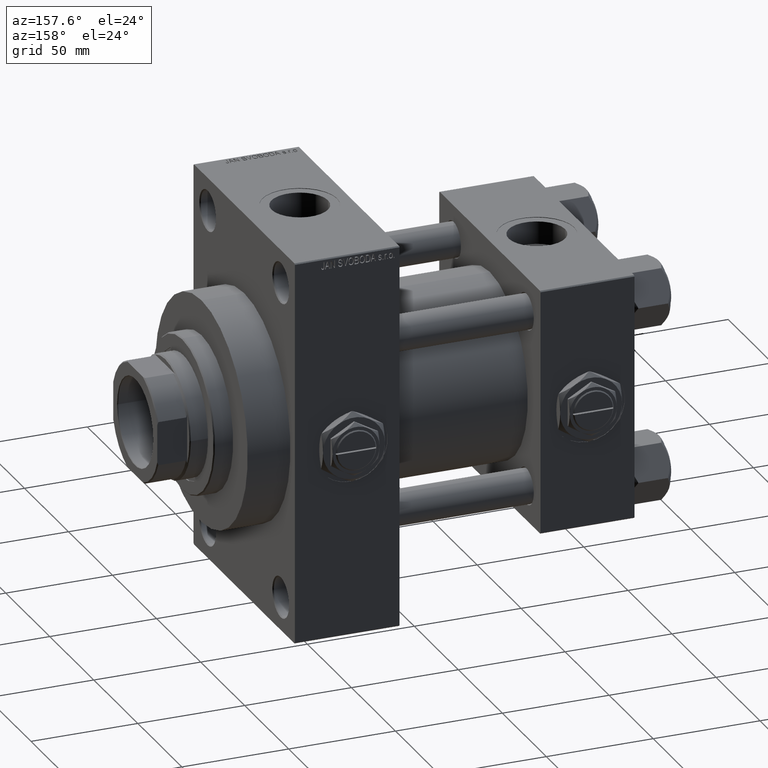
[diagram: clean part render]
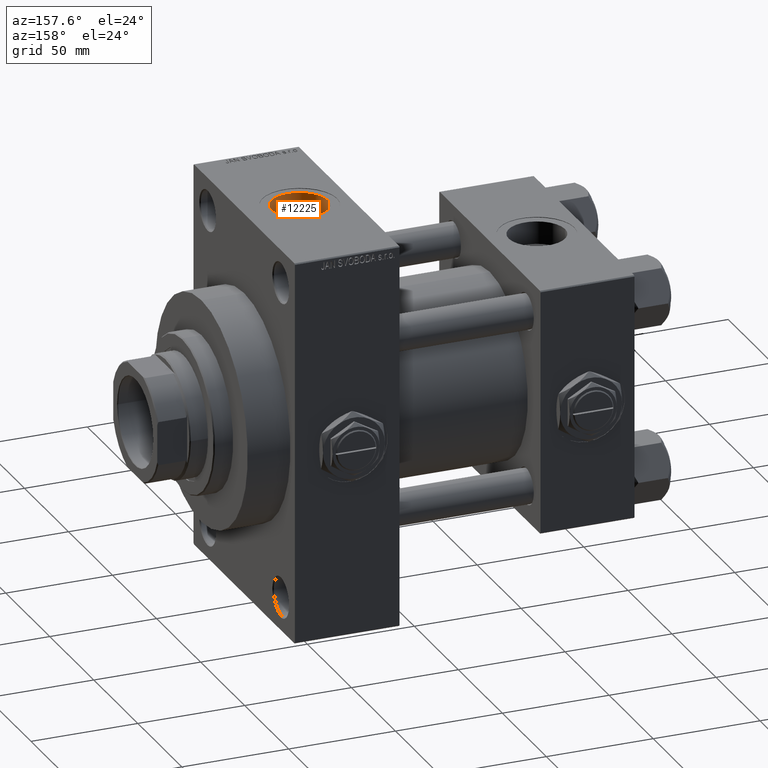
[diagram: same view with one face highlighted and labeled with its STEP entity id]
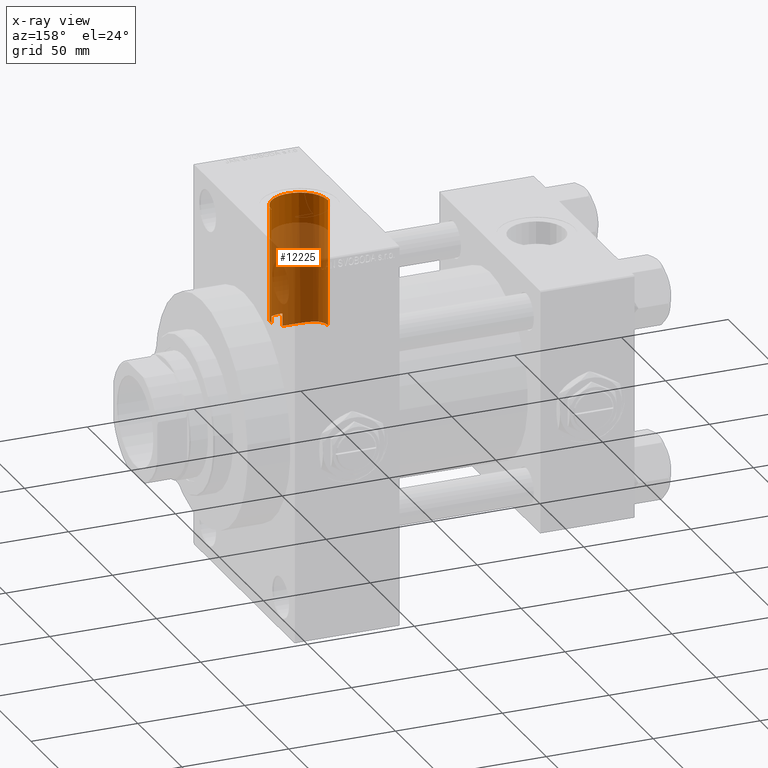
[diagram: x-ray of the same camera — body ghosted, the highlighted face saturated]
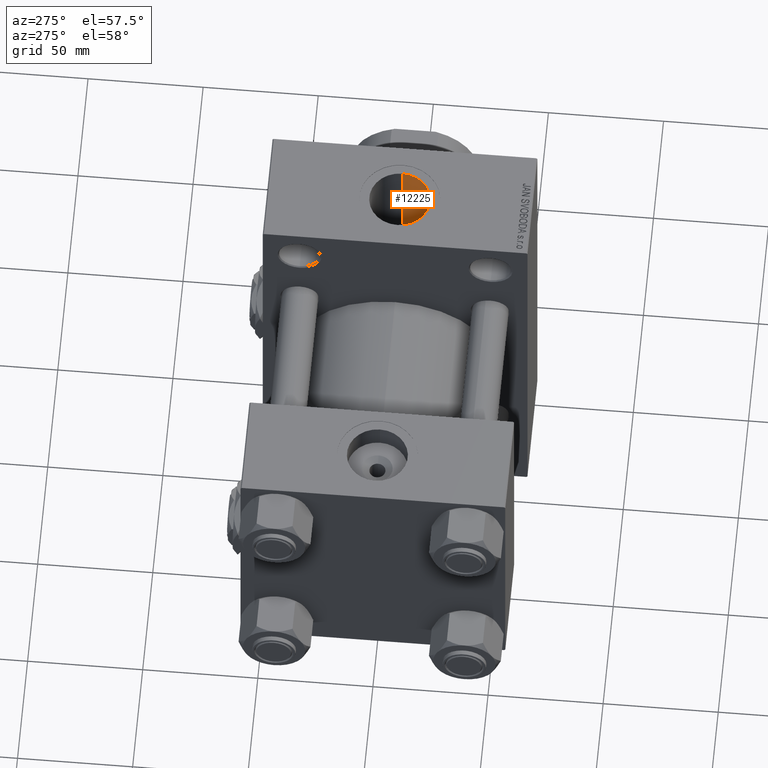
[diagram: same view with one face highlighted and labeled with its STEP entity id]
A machine part, auxiliary view. The second image highlights one B-rep face of the part: STEP entity #12225.
The next image is the same camera in x-ray: the body ghosted, the highlighted face saturated — about 76% of this face is hidden behind the body in this view.
A second angle (auxiliary view) of the same face is appended — the face is thin or edge-on in the first view.
In plain terms, the highlighted cylindrical surface (edge-blend (fillet) strip) has radius 13.22 mm, axis along (0, 0, -1).
Its self-contained STEP definition (entity closure, byte-faithful):
#245 = EDGE_CURVE ( 'NONE', #15597, #9908, #36972, .T. ) ;
#816 = EDGE_CURVE ( 'NONE', #9908, #44210, #6423, .T. ) ;
#1517 = VECTOR ( 'NONE', #10069, 1000.000000000000000 ) ;
#1561 = CARTESIAN_POINT ( 'NONE',  ( 133.0000000000000000, -1.086087741481131350E-14, 112.7999999999999829 ) ) ;
#2266 = EDGE_CURVE ( 'NONE', #15597, #48981, #13333, .T. ) ;
#2610 = CARTESIAN_POINT ( 'NONE',  ( 131.8037034507516125, -13.17510903343229600, 27.50766127672410022 ) ) ;
#2833 = CARTESIAN_POINT ( 'NONE',  ( 137.2076088460675294, -12.53825874082049552, 33.74619856893892234 ) ) ;
#3078 = CARTESIAN_POINT ( 'NONE',  ( 146.2200000000000273, -0.7632647160769636674, 36.00000000000000000 ) ) ;
#3332 = CARTESIAN_POINT ( 'NONE',  ( 130.8194127222318741, -13.04835861710616030, 27.56801161413727641 ) ) ;
#3837 = CARTESIAN_POINT ( 'NONE',  ( 126.2234386244904272, -11.39284893347530669, 28.29622104590160347 ) ) ;
#4328 = CARTESIAN_POINT ( 'NONE',  ( 127.9856869291995451, -12.24205054737453580, 27.93593895886880318 ) ) ;
#5155 = CARTESIAN_POINT ( 'NONE',  ( 119.7800000000000011, -1.086087741481131350E-14, 89.79999999999998295 ) ) ;
#6384 = CARTESIAN_POINT ( 'NONE',  ( 135.7400000000000091, -12.93293470176048920, 27.62225914004861949 ) ) ;
#6423 = B_SPLINE_CURVE_WITH_KNOTS ( 'NONE', 3,
 ( #30024, #3078, #49657, #14189, #48670, #7100, #37835, #38076, #18707, #15175, #45146, #21985, #45634, #22723, #14674, #49404, #11389, #37586, #26508, #29547, #22475, #10631, #2833, #7599, #41865, #26011 ),
 .UNSPECIFIED., .F., .F.,
 ( 4, 2, 2, 2, 2, 2, 2, 2, 2, 2, 2, 2, 4 ),
 ( 0.01810032772820883984, 0.02036086973656282134, 0.02149114074073981903, 0.02262141174491681672, 0.02488195375327078782, 0.02601222475744779244, 0.02714249576162479360, 0.02940303776997874735, 0.03053330877415569300, 0.03166357977833263865, 0.03392412178668652301, 0.03505439279086347559, 0.03618466379504041430 ),
 .UNSPECIFIED. ) ;
#6843 = DIRECTION ( 'NONE',  ( -0.000000000000000000, -0.000000000000000000, -1.000000000000000000 ) ) ;
#7100 = CARTESIAN_POINT ( 'NONE',  ( 145.6891278366016707, -3.727918262643101333, 35.80834393886974709 ) ) ;
#7365 = CARTESIAN_POINT ( 'NONE',  ( 120.6573864625835313, -4.834977203227584397, 30.12760479331261720 ) ) ;
#7447 = DIRECTION ( 'NONE',  ( 0.000000000000000000, 0.000000000000000000, -1.000000000000000000 ) ) ;
#7599 = CARTESIAN_POINT ( 'NONE',  ( 136.4827252521805008, -12.75862568112616025, 33.66350131574142068 ) ) ;
#7610 = CARTESIAN_POINT ( 'NONE',  ( 125.4103075940778353, -10.86814745508434044, 28.50545567885846410 ) ) ;
#8112 = CARTESIAN_POINT ( 'NONE',  ( 119.7800000000000153, -0.4934884814115302332, 30.50000000000000355 ) ) ;
#8426 = CARTESIAN_POINT ( 'NONE',  ( 119.7800000000000011, -1.086087741481131350E-14, 112.7999999999999829 ) ) ;
#9908 = VERTEX_POINT ( 'NONE', #44154 ) ;
#10069 = DIRECTION ( 'NONE',  ( -0.000000000000000000, -0.000000000000000000, 1.000000000000000000 ) ) ;
#10631 = CARTESIAN_POINT ( 'NONE',  ( 137.5622627804116576, -12.41346128962093331, 33.79242230791055590 ) ) ;
#11146 = CARTESIAN_POINT ( 'NONE',  ( 120.0571384771800325, -2.704130925345935132, 30.38086169036233741 ) ) ;
#11389 = CARTESIAN_POINT ( 'NONE',  ( 141.1396695021039136, -10.42376285600500552, 34.45866136291866155 ) ) ;
#11597 = B_SPLINE_CURVE_WITH_KNOTS ( 'NONE', 3,
 ( #6384, #22246, #22486, #32835, #2610, #3332, #38086, #15439, #22733, #4328, #19706, #3837, #7610, #15929, #45646, #46144, #41876, #15683, #46636, #7365, #19224, #11146, #39074, #34324, #30283, #34815, #8112, #38599 ),
 .UNSPECIFIED., .F., .F.,
 ( 4, 2, 2, 2, 2, 2, 2, 2, 2, 2, 2, 2, 2, 4 ),
 ( 0.01817501853417220065, 0.02113533814074457923, 0.02261549794403076852, 0.02409565774731695781, 0.02557581755060314363, 0.02705597735388933639, 0.03001629696046170803, 0.03297661656703407967, 0.03445677637032025509, 0.03593693617360642356, 0.03889725578017878826, 0.03963733568182188638, 0.04037741558346498449, 0.04185757538675117378 ),
 .UNSPECIFIED. ) ;
#11971 = AXIS2_PLACEMENT_3D ( 'NONE', #1561, #7447, #36065 ) ;
#12225 = ADVANCED_FACE ( 'NONE', ( #24235 ), #38173, .F. ) ;
#13333 = CIRCLE ( 'NONE', #34270, 13.22000000000000952 ) ;
#14189 = CARTESIAN_POINT ( 'NONE',  ( 145.9615557504130550, -2.628343228240504370, 35.90584824798534669 ) ) ;
#14674 = CARTESIAN_POINT ( 'NONE',  ( 142.2683236211794053, -9.456123306897666225, 34.73961675537524485 ) ) ;
#15175 = CARTESIAN_POINT ( 'NONE',  ( 144.3340033522583497, -6.815280192024313344, 35.35054759480853903 ) ) ;
#15255 = CARTESIAN_POINT ( 'NONE',  ( 146.2200000000000273, -9.241894346338509984E-15, 89.79999999999998295 ) ) ;
#15439 = CARTESIAN_POINT ( 'NONE',  ( 129.3806226936400776, -12.72437874985378947, 27.71924882183590810 ) ) ;
#15597 = VERTEX_POINT ( 'NONE', #15255 ) ;
#15683 = CARTESIAN_POINT ( 'NONE',  ( 121.5247582497704855, -6.582345398711117568, 29.78430981770568664 ) ) ;
#15929 = CARTESIAN_POINT ( 'NONE',  ( 123.8972371638811865, -9.636377362439814576, 28.94508358760566225 ) ) ;
#18707 = CARTESIAN_POINT ( 'NONE',  ( 144.8836492013384145, -5.839896060611126316, 35.52932100949514904 ) ) ;
#19224 = CARTESIAN_POINT ( 'NONE',  ( 120.3336605936850816, -3.913778405700231833, 30.26347032903657919 ) ) ;
#19706 = CARTESIAN_POINT ( 'NONE',  ( 127.5318111534776477, -12.04594987798921579, 28.02143598411491254 ) ) ;
#21860 = ORIENTED_EDGE ( 'NONE', *, *, #2266, .F. ) ;
#21985 = CARTESIAN_POINT ( 'NONE',  ( 143.7144084780975959, -7.753104972441714260, 35.15664683191293705 ) ) ;
#22241 = CARTESIAN_POINT ( 'NONE',  ( 135.7400000000000091, -12.93293470176048920, 27.62225914004861949 ) ) ;
#22246 = CARTESIAN_POINT ( 'NONE',  ( 134.7728848785530715, -13.13782983916530078, 27.52632580529387241 ) ) ;
#22475 = CARTESIAN_POINT ( 'NONE',  ( 138.6039743856111386, -11.99680468088063812, 33.94354112271071955 ) ) ;
#22486 = CARTESIAN_POINT ( 'NONE',  ( 133.7935798839907022, -13.23338642126744524, 27.47958799132000252 ) ) ;
#22723 = CARTESIAN_POINT ( 'NONE',  ( 142.7829955645538007, -8.922873027715086280, 34.88174282732672538 ) ) ;
#22733 = CARTESIAN_POINT ( 'NONE',  ( 128.9108056136110463, -12.58132053668447980, 27.78479549450236519 ) ) ;
#22795 = VECTOR ( 'NONE', #32351, 1000.000000000000000 ) ;
#23567 = LINE ( 'NONE', #8426, #22795 ) ;
#23726 = VECTOR ( 'NONE', #33193, 1000.000000000000000 ) ;
#24235 = FACE_OUTER_BOUND ( 'NONE', #45968, .T. ) ;
#26011 = CARTESIAN_POINT ( 'NONE',  ( 135.7400000000000091, -12.93293470176048920, 33.59671412504501831 ) ) ;
#26508 = CARTESIAN_POINT ( 'NONE',  ( 140.2234778375481312, -11.07831175427974379, 34.25365854375355212 ) ) ;
#27347 = ORIENTED_EDGE ( 'NONE', *, *, #816, .T. ) ;
#29218 = LINE ( 'NONE', #43823, #1517 ) ;
#29547 = CARTESIAN_POINT ( 'NONE',  ( 139.2689392453522430, -11.66300537238692314, 34.06086853725207675 ) ) ;
#30024 = CARTESIAN_POINT ( 'NONE',  ( 146.2200000000000273, 4.408731805096607676E-15, 36.00000000000000000 ) ) ;
#30283 = CARTESIAN_POINT ( 'NONE',  ( 119.8904211679684551, -1.722922135315099190, 30.45229114395320735 ) ) ;
#32351 = DIRECTION ( 'NONE',  ( 0.000000000000000000, 0.000000000000000000, -1.000000000000000000 ) ) ;
#32835 = CARTESIAN_POINT ( 'NONE',  ( 132.3058823230128382, -13.21107762266989738, 27.49031640659328346 ) ) ;
#33193 = DIRECTION ( 'NONE',  ( 0.000000000000000000, 0.000000000000000000, -1.000000000000000000 ) ) ;
#33334 = ORIENTED_EDGE ( 'NONE', *, *, #44867, .T. ) ;
#34167 = VERTEX_POINT ( 'NONE', #22241 ) ;
#34270 = AXIS2_PLACEMENT_3D ( 'NONE', #41355, #6843, #37574 ) ;
#34324 = CARTESIAN_POINT ( 'NONE',  ( 119.9249887712033882, -1.968324950537289952, 30.43741289426054308 ) ) ;
#34359 = ORIENTED_EDGE ( 'NONE', *, *, #48050, .F. ) ;
#34815 = CARTESIAN_POINT ( 'NONE',  ( 119.8075453442667424, -0.9859064391995653320, 30.48803002647009919 ) ) ;
#34926 = CARTESIAN_POINT ( 'NONE',  ( 119.7800000000000011, 3.735152335644797090E-15, 30.50000000000000000 ) ) ;
#36065 = DIRECTION ( 'NONE',  ( -1.000000000000000000, 0.000000000000000000, 0.000000000000000000 ) ) ;
#36972 = LINE ( 'NONE', #44515, #23726 ) ;
#37574 = DIRECTION ( 'NONE',  ( 1.000000000000000000, 0.000000000000000000, 0.000000000000000000 ) ) ;
#37586 = CARTESIAN_POINT ( 'NONE',  ( 140.5356348427428941, -10.86845247487193866, 34.32099817610178860 ) ) ;
#37835 = CARTESIAN_POINT ( 'NONE',  ( 145.5762609626179938, -4.092528755394254425, 35.76841822259746095 ) ) ;
#38076 = CARTESIAN_POINT ( 'NONE',  ( 145.1948937127548049, -5.159834589306234953, 35.63551938799943741 ) ) ;
#38086 = CARTESIAN_POINT ( 'NONE',  ( 130.3349265898027909, -12.95789683450919760, 27.61085799903361959 ) ) ;
#38173 = CYLINDRICAL_SURFACE ( 'NONE', #11971, 13.22000000000000952 ) ;
#38599 = CARTESIAN_POINT ( 'NONE',  ( 119.7800000000000011, 3.735152335644797090E-15, 30.50000000000000000 ) ) ;
#39074 = CARTESIAN_POINT ( 'NONE',  ( 120.0082494278151160, -2.458584717718188983, 30.40173955536769412 ) ) ;
#40132 = EDGE_CURVE ( 'NONE', #34167, #44210, #29218, .T. ) ;
#41355 = CARTESIAN_POINT ( 'NONE',  ( 133.0000000000000000, -1.086087741481131350E-14, 89.79999999999998295 ) ) ;
#41650 = ORIENTED_EDGE ( 'NONE', *, *, #40132, .F. ) ;
#41750 = CARTESIAN_POINT ( 'NONE',  ( 135.7400000000000091, -12.93293470176048920, 33.59671412504501831 ) ) ;
#41865 = CARTESIAN_POINT ( 'NONE',  ( 136.1130436000879058, -12.85390086390297171, 33.62713791769439808 ) ) ;
#41876 = CARTESIAN_POINT ( 'NONE',  ( 122.0434615026330221, -7.413683856886505552, 29.58833678893007146 ) ) ;
#42053 = VERTEX_POINT ( 'NONE', #34926 ) ;
#42381 = ORIENTED_EDGE ( 'NONE', *, *, #245, .T. ) ;
#43823 = CARTESIAN_POINT ( 'NONE',  ( 135.7400000000000091, -12.93293470176048920, 112.7999999999999829 ) ) ;
#44154 = CARTESIAN_POINT ( 'NONE',  ( 146.2200000000000273, 4.408731805096607676E-15, 36.00000000000000000 ) ) ;
#44210 = VERTEX_POINT ( 'NONE', #41750 ) ;
#44515 = CARTESIAN_POINT ( 'NONE',  ( 146.2200000000000273, -9.241894346338509984E-15, 112.7999999999999829 ) ) ;
#44867 = EDGE_CURVE ( 'NONE', #34167, #42053, #11597, .T. ) ;
#45146 = CARTESIAN_POINT ( 'NONE',  ( 144.1369082302657887, -7.132913908065001252, 35.28770313236165634 ) ) ;
#45634 = CARTESIAN_POINT ( 'NONE',  ( 143.4891427515922260, -8.055144359843698254, 35.08850325643998502 ) ) ;
#45646 = CARTESIAN_POINT ( 'NONE',  ( 123.2203172874389878, -8.947551960444558361, 29.16865783815234536 ) ) ;
#45968 = EDGE_LOOP ( 'NONE', ( #21860, #42381, #27347, #41650, #33334, #34359 ) ) ;
#46144 = CARTESIAN_POINT ( 'NONE',  ( 122.3230183722455138, -7.810479071823803743, 29.48561069758634190 ) ) ;
#46636 = CARTESIAN_POINT ( 'NONE',  ( 121.2888049357342339, -6.152518877594249425, 29.87635194004261407 ) ) ;
#48050 = EDGE_CURVE ( 'NONE', #48981, #42053, #23567, .T. ) ;
#48670 = CARTESIAN_POINT ( 'NONE',  ( 145.8814408249625956, -2.996635129533369302, 35.87694312671834496 ) ) ;
#48981 = VERTEX_POINT ( 'NONE', #5155 ) ;
#49404 = CARTESIAN_POINT ( 'NONE',  ( 141.4301524439943023, -10.19013505585470192, 34.52862519156883536 ) ) ;
#49657 = CARTESIAN_POINT ( 'NONE',  ( 146.1544019816762443, -1.515576091947735238, 35.97576316411752373 ) ) ;